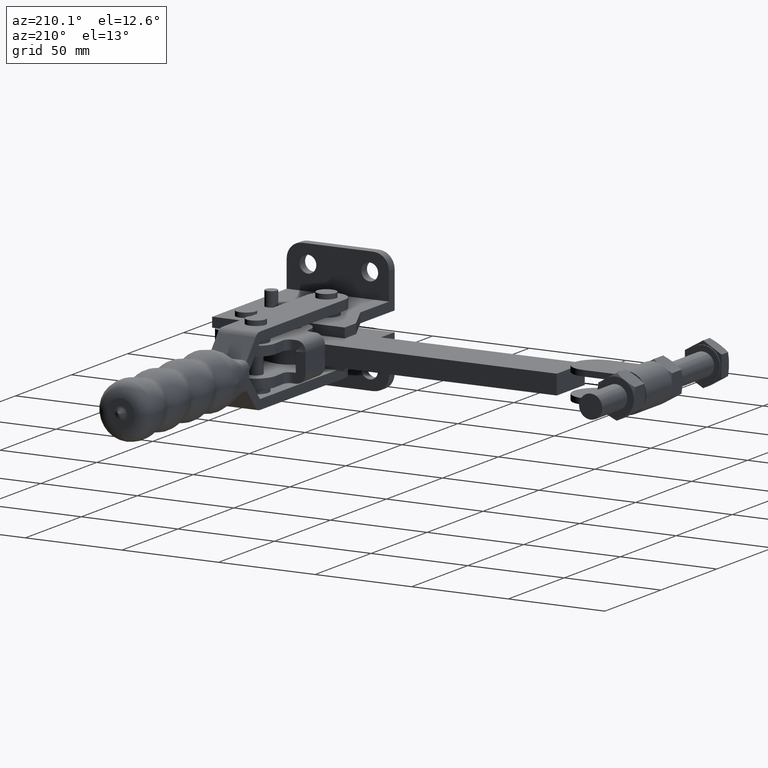
[diagram: clean part render]
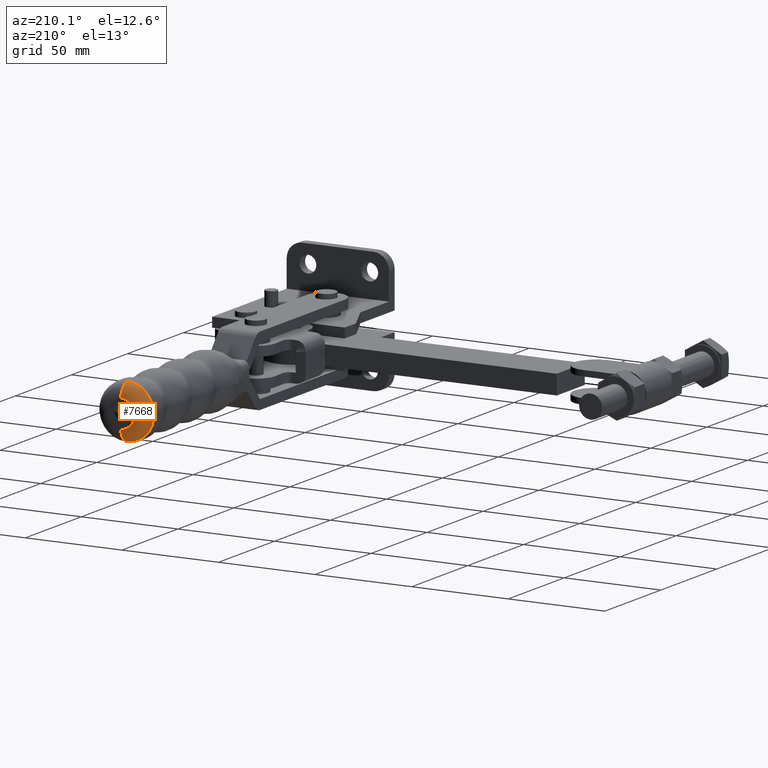
[diagram: same view with one face highlighted and labeled with its STEP entity id]
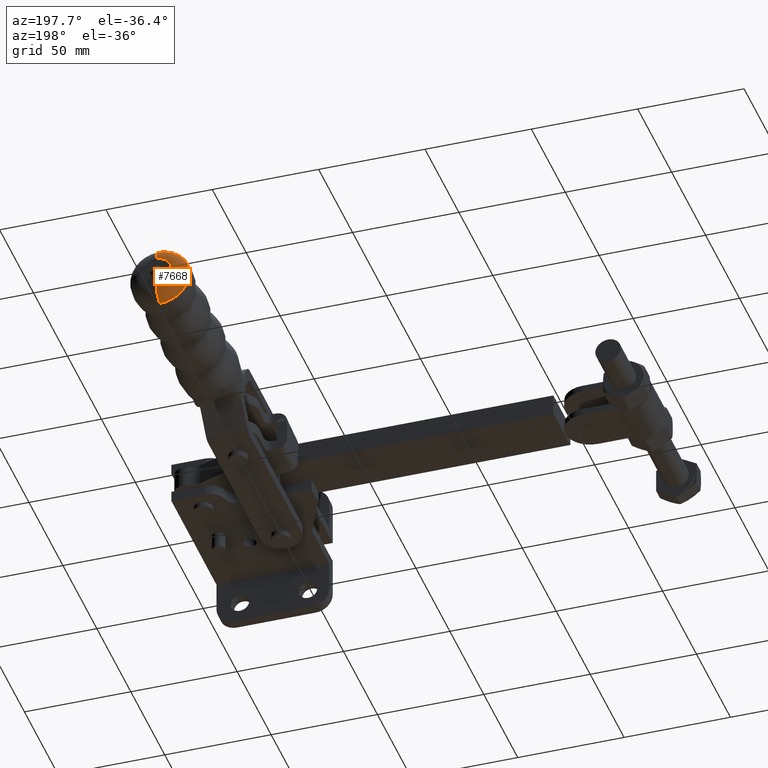
[diagram: same view with one face highlighted and labeled with its STEP entity id]
A machine part, auxiliary view. The second image highlights one B-rep face of the part: STEP entity #7668.
A second angle (auxiliary view) of the same face is appended — the face is thin or edge-on in the first view.
In plain terms, the highlighted toroidal blend (fillet) surface has major radius 7.1491 mm and minor (blend) radius 7 mm.
Its self-contained STEP definition (entity closure, byte-faithful):
#117 = CIRCLE ( 'NONE', #1032, 7.000000000000044400 ) ;
#700 = CARTESIAN_POINT ( 'NONE',  ( -41.99646654774777200, 243.8553500879716900, -1.251305519650972100E-015 ) ) ;
#777 = DIRECTION ( 'NONE',  ( -2.001903344682704000E-005, -0.9999999997996191800, 1.020343451799671800E-017 ) ) ;
#1032 = AXIS2_PLACEMENT_3D ( 'NONE', #6318, #19966, #8310 ) ;
#1372 = AXIS2_PLACEMENT_3D ( 'NONE', #22942, #11243, #24939 ) ;
#1408 = ORIENTED_EDGE ( 'NONE', *, *, #5811, .T. ) ;
#1409 = VERTEX_POINT ( 'NONE', #21648 ) ;
#1801 = CARTESIAN_POINT ( 'NONE',  ( -41.99632641451364600, 250.8553500865691600, -1.322729561276950600E-015 ) ) ;
#1931 = ORIENTED_EDGE ( 'NONE', *, *, #14856, .F. ) ;
#2252 = CARTESIAN_POINT ( 'NONE',  ( -41.99632641451364600, 250.8553500865691000, 7.149110640673193900 ) ) ;
#3426 = CARTESIAN_POINT ( 'NONE',  ( -41.99643420930912200, 245.4707347030337100, 13.96017021642026100 ) ) ;
#3777 = DIRECTION ( 'NONE',  ( 0.0000000000000000000, 0.0000000000000000000, 1.000000000000000000 ) ) ;
#4477 = AXIS2_PLACEMENT_3D ( 'NONE', #1801, #15453, #3777 ) ;
#4594 = ORIENTED_EDGE ( 'NONE', *, *, #9121, .T. ) ;
#5811 = EDGE_CURVE ( 'NONE', #6430, #1409, #12519, .T. ) ;
#6318 = CARTESIAN_POINT ( 'NONE',  ( -41.99646654774777200, 243.8553500879716900, -7.149110640673194800 ) ) ;
#6430 = VERTEX_POINT ( 'NONE', #2252 ) ;
#7610 = DIRECTION ( 'NONE',  ( 0.9999999997996192900, -2.001903344682704000E-005, -1.096953554745389300E-017 ) ) ;
#7668 = ADVANCED_FACE ( 'NONE', ( #15199 ), #18549, .T. ) ;
#7693 = VERTEX_POINT ( 'NONE', #12391 ) ;
#8310 = DIRECTION ( 'NONE',  ( -2.001903344682265200E-005, -0.9999999997996190700, 0.0000000000000000000 ) ) ;
#9121 = EDGE_CURVE ( 'NONE', #1409, #7693, #117, .T. ) ;
#9303 = CIRCLE ( 'NONE', #22718, 7.000000000000044400 ) ;
#9828 = EDGE_CURVE ( 'NONE', #10176, #7693, #17790, .T. ) ;
#10176 = VERTEX_POINT ( 'NONE', #3426 ) ;
#11243 = DIRECTION ( 'NONE',  ( -2.001903344682704000E-005, -0.9999999997996191800, 1.020343451799671800E-017 ) ) ;
#12391 = CARTESIAN_POINT ( 'NONE',  ( -41.99643420930912200, 245.4707347030337100, -13.96017021642026500 ) ) ;
#12519 = CIRCLE ( 'NONE', #4477, 7.149110640673194800 ) ;
#14426 = DIRECTION ( 'NONE',  ( 2.042628968882858700E-022, 1.020343451595214700E-017, 1.000000000000000000 ) ) ;
#14856 = EDGE_CURVE ( 'NONE', #6430, #10176, #9303, .T. ) ;
#15199 = FACE_OUTER_BOUND ( 'NONE', #19911, .T. ) ;
#15453 = DIRECTION ( 'NONE',  ( -2.001903344682704000E-005, -0.9999999997996191800, 1.020343451799671800E-017 ) ) ;
#15750 = ORIENTED_EDGE ( 'NONE', *, *, #9828, .F. ) ;
#17790 = CIRCLE ( 'NONE', #1372, 13.96017021642025900 ) ;
#18549 = TOROIDAL_SURFACE ( 'NONE', #23336, 7.149110640673194800, 7.000000000000051500 ) ;
#19293 = CARTESIAN_POINT ( 'NONE',  ( -41.99646654774777200, 243.8553500879716900, 7.149110640673193900 ) ) ;
#19911 = EDGE_LOOP ( 'NONE', ( #1408, #4594, #15750, #1931 ) ) ;
#19966 = DIRECTION ( 'NONE',  ( -0.9999999997996192900, 2.001903344682704000E-005, 1.334342154621892000E-016 ) ) ;
#21246 = DIRECTION ( 'NONE',  ( 2.001903344682265200E-005, 0.9999999997996190700, 0.0000000000000000000 ) ) ;
#21648 = CARTESIAN_POINT ( 'NONE',  ( -41.99632641451364600, 250.8553500865691000, -7.149110640673194800 ) ) ;
#22718 = AXIS2_PLACEMENT_3D ( 'NONE', #19293, #7610, #21246 ) ;
#22942 = CARTESIAN_POINT ( 'NONE',  ( -41.99643420930912900, 245.4707347030337100, -1.267787990795439600E-015 ) ) ;
#23336 = AXIS2_PLACEMENT_3D ( 'NONE', #700, #777, #14426 ) ;
#24939 = DIRECTION ( 'NONE',  ( 0.0000000000000000000, 0.0000000000000000000, 1.000000000000000000 ) ) ;